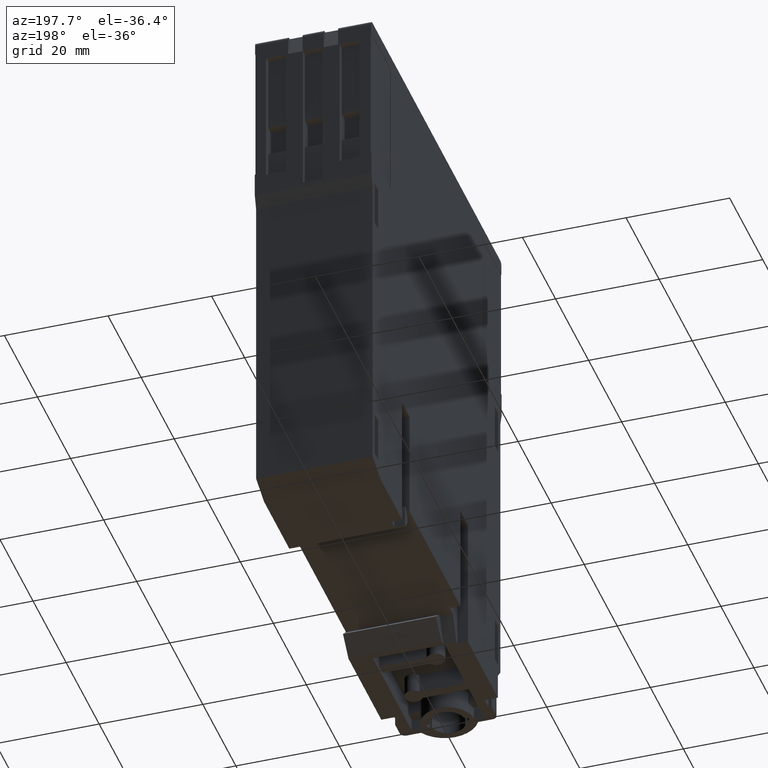
[diagram: clean part render]
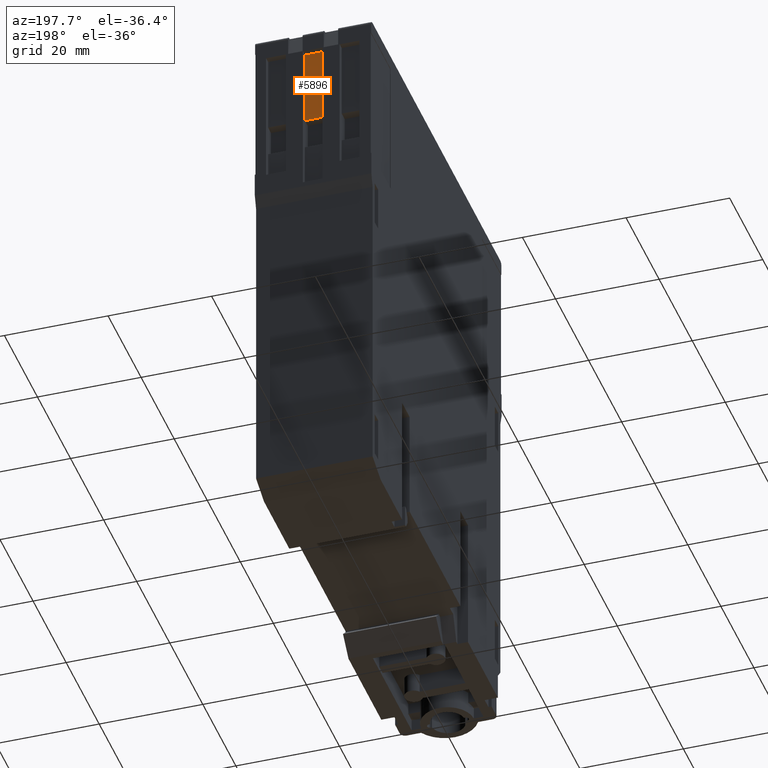
[diagram: same view with one face highlighted and labeled with its STEP entity id]
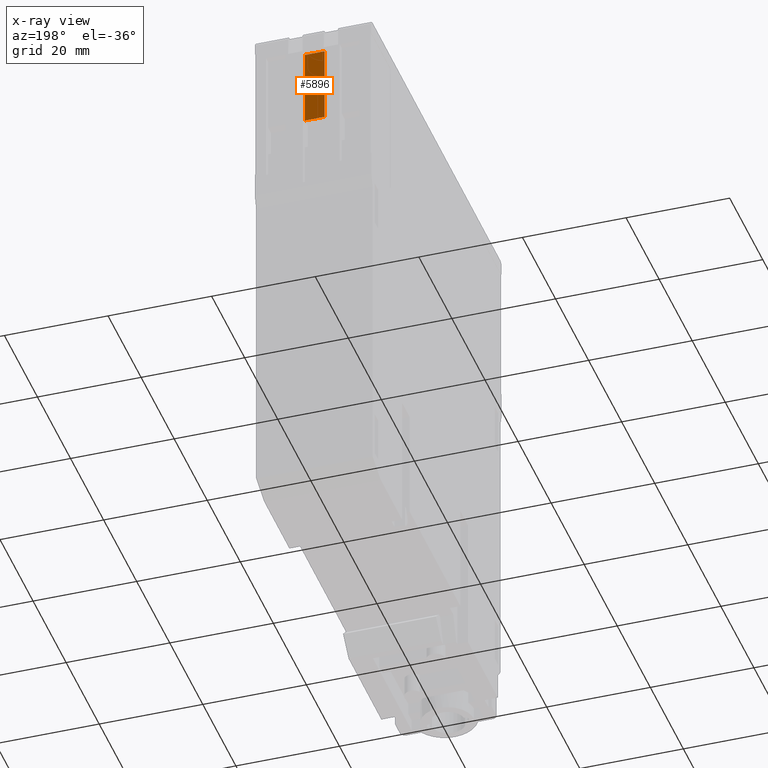
[diagram: x-ray of the same camera — body ghosted, the highlighted face saturated]
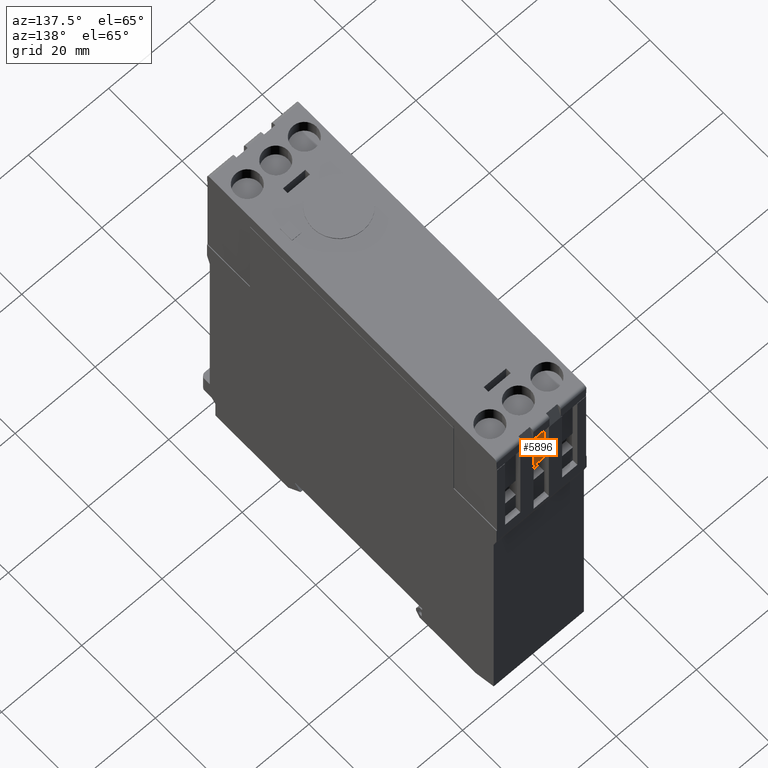
[diagram: same view with one face highlighted and labeled with its STEP entity id]
A machine part, auxiliary view. The second image highlights one B-rep face of the part: STEP entity #5896.
The next image is the same camera in x-ray: the body ghosted, the highlighted face saturated — about 0% of this face is hidden behind the body in this view.
A second angle (auxiliary view) of the same face is appended — the face is thin or edge-on in the first view.
In plain terms, the highlighted planar face has unit normal (0, 1, 0).
Its self-contained STEP definition (entity closure, byte-faithful):
#1736=DIRECTION('',(0.E0,0.E0,1.E0));
#1737=VECTOR('',#1736,1.4986E1);
#1738=CARTESIAN_POINT('',(-2.078141289025E0,3.814308004937E1,8.196738632683E1));
#1739=LINE('',#1738,#1737);
#1740=DIRECTION('',(-1.E0,0.E0,0.E0));
#1741=VECTOR('',#1740,3.81E0);
#1742=CARTESIAN_POINT('',(1.731858710975E0,3.814308004937E1,8.196738632683E1));
#1743=LINE('',#1742,#1741);
#1744=DIRECTION('',(0.E0,0.E0,-1.E0));
#1745=VECTOR('',#1744,1.4986E1);
#1746=CARTESIAN_POINT('',(1.731858710975E0,3.814308004937E1,9.695338632683E1));
#1747=LINE('',#1746,#1745);
#1748=DIRECTION('',(1.E0,0.E0,0.E0));
#1749=VECTOR('',#1748,3.81E0);
#1750=CARTESIAN_POINT('',(-2.078141289025E0,3.814308004937E1,9.695338632683E1));
#1751=LINE('',#1750,#1749);
#3649=CARTESIAN_POINT('',(-2.078141289025E0,3.814308004937E1,9.695338632683E1));
#3650=VERTEX_POINT('',#3649);
#3717=CARTESIAN_POINT('',(-2.078141289025E0,3.814308004937E1,8.196738632683E1));
#3718=VERTEX_POINT('',#3717);
#3771=CARTESIAN_POINT('',(1.731858710975E0,3.814308004937E1,9.695338632683E1));
#3772=VERTEX_POINT('',#3771);
#3813=CARTESIAN_POINT('',(1.731858710975E0,3.814308004937E1,8.196738632683E1));
#3814=VERTEX_POINT('',#3813);
#5884=CARTESIAN_POINT('',(-2.268641289025E0,3.814308004937E1,9.770268632683E1));
#5885=DIRECTION('',(0.E0,1.E0,0.E0));
#5886=DIRECTION('',(0.E0,0.E0,-1.E0));
#5887=AXIS2_PLACEMENT_3D('',#5884,#5885,#5886);
#5888=PLANE('',#5887);
#5889=ORIENTED_EDGE('',*,*,#5812,.F.);
#5890=ORIENTED_EDGE('',*,*,#5877,.F.);
#5891=ORIENTED_EDGE('',*,*,#5850,.F.);
#5893=ORIENTED_EDGE('',*,*,#5892,.F.);
#5894=EDGE_LOOP('',(#5889,#5890,#5891,#5893));
#5895=FACE_OUTER_BOUND('',#5894,.F.);
#5896=ADVANCED_FACE('',(#5895),#5888,.T.);
#5812=EDGE_CURVE('',#3718,#3650,#1739,.T.);
#5850=EDGE_CURVE('',#3772,#3814,#1747,.T.);
#5877=EDGE_CURVE('',#3814,#3718,#1743,.T.);
#5892=EDGE_CURVE('',#3650,#3772,#1751,.T.);